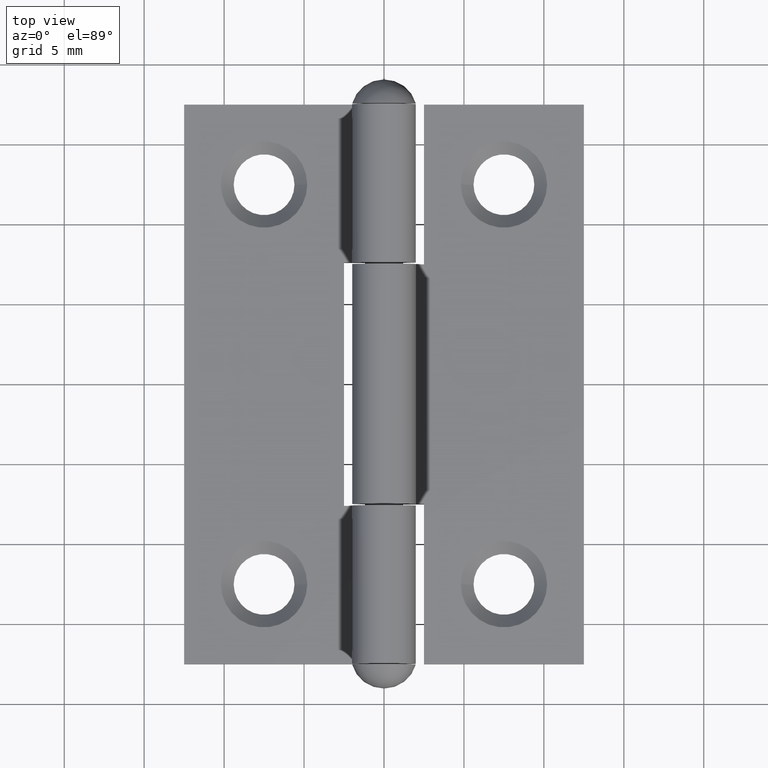
[diagram: clean part render]
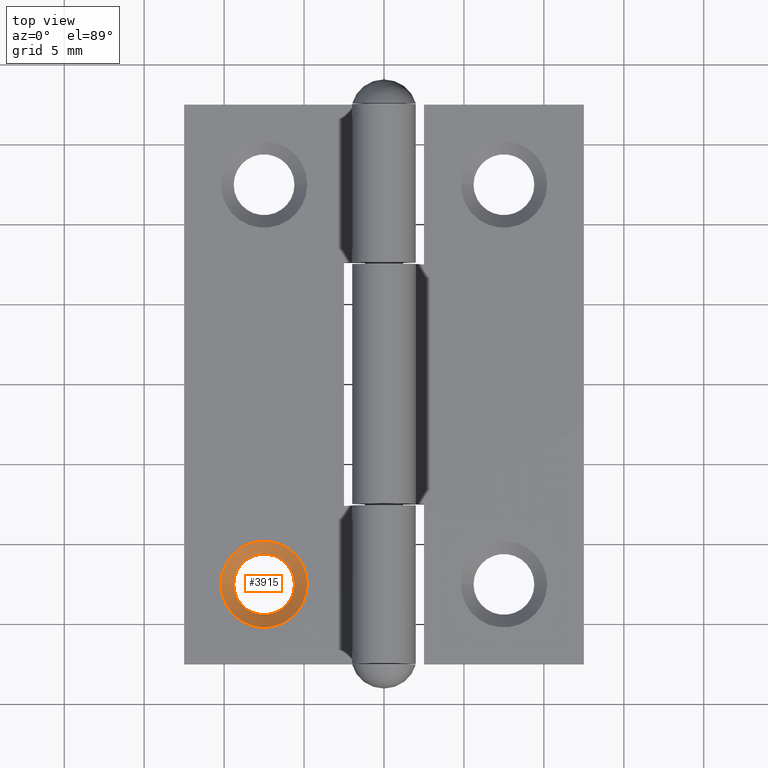
[diagram: same view with one face highlighted and labeled with its STEP entity id]
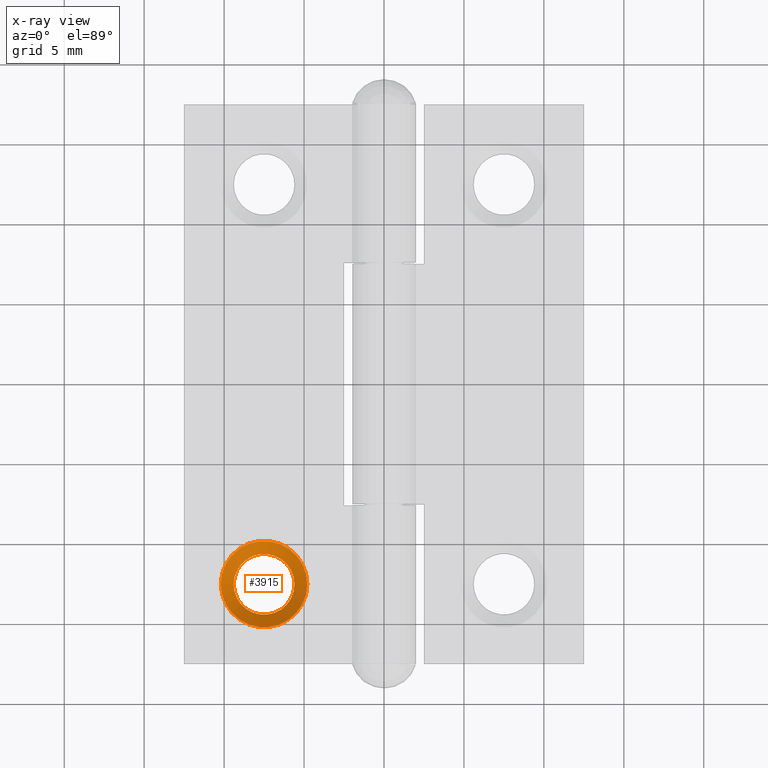
[diagram: x-ray of the same camera — body ghosted, the highlighted face saturated]
A machine part, top view. The second image highlights one B-rep face of the part: STEP entity #3915.
The next image is the same camera in x-ray: the body ghosted, the highlighted face saturated — about 0% of this face is hidden behind the body in this view.
In plain terms, the highlighted conical surface has half-angle 45 deg.
Its self-contained STEP definition (entity closure, byte-faithful):
#337 = ORIENTED_EDGE ( 'NONE', *, *, #9811, .F. ) ;
#1413 = EDGE_CURVE ( 'NONE', #8507, #8507, #4557, .T. ) ;
#1425 = ORIENTED_EDGE ( 'NONE', *, *, #1413, .F. ) ;
#1555 = DIRECTION ( 'NONE',  ( 1.000000000000000000, 0.000000000000000000, 0.000000000000000000 ) ) ;
#1676 = FACE_OUTER_BOUND ( 'NONE', #6327, .T. ) ;
#1944 = AXIS2_PLACEMENT_3D ( 'NONE', #3229, #8755, #1555 ) ;
#2426 = FACE_BOUND ( 'NONE', #3069, .T. ) ;
#2588 = AXIS2_PLACEMENT_3D ( 'NONE', #2929, #6109, #2957 ) ;
#2929 = CARTESIAN_POINT ( 'NONE',  ( -9.500000000000001776, -12.50000000000000178, 0.000000000000000000 ) ) ;
#2947 = CARTESIAN_POINT ( 'NONE',  ( -12.20000000000002416, -12.50000000000000178, 0.8000000000000013767 ) ) ;
#2957 = DIRECTION ( 'NONE',  ( 1.000000000000000000, 0.000000000000000000, 0.000000000000000000 ) ) ;
#3036 = AXIS2_PLACEMENT_3D ( 'NONE', #3411, #4300, #4985 ) ;
#3069 = EDGE_LOOP ( 'NONE', ( #1425 ) ) ;
#3229 = CARTESIAN_POINT ( 'NONE',  ( -9.500000000000001776, -12.50000000000000178, -1.704365815147212970E-14 ) ) ;
#3411 = CARTESIAN_POINT ( 'NONE',  ( -9.500000000000001776, -12.50000000000000178, 0.8000000000000010436 ) ) ;
#3580 = CIRCLE ( 'NONE', #3036, 2.700000000000021938 ) ;
#3915 = ADVANCED_FACE ( 'NONE', ( #1676, #2426 ), #5759, .F. ) ;
#4300 = DIRECTION ( 'NONE',  ( -1.127570259384924611E-16, 0.000000000000000000, -1.000000000000000000 ) ) ;
#4557 = CIRCLE ( 'NONE', #2588, 1.900000000000000577 ) ;
#4985 = DIRECTION ( 'NONE',  ( -1.000000000000000000, 0.000000000000000000, 1.204669080539439483E-16 ) ) ;
#5759 = CONICAL_SURFACE ( 'NONE', #1944, 1.900000000000000577, 0.7853981633974504994 ) ;
#6109 = DIRECTION ( 'NONE',  ( 0.000000000000000000, 0.000000000000000000, 1.000000000000000000 ) ) ;
#6327 = EDGE_LOOP ( 'NONE', ( #337 ) ) ;
#8266 = VERTEX_POINT ( 'NONE', #2947 ) ;
#8507 = VERTEX_POINT ( 'NONE', #9971 ) ;
#8755 = DIRECTION ( 'NONE',  ( 0.000000000000000000, 0.000000000000000000, 1.000000000000000000 ) ) ;
#9811 = EDGE_CURVE ( 'NONE', #8266, #8266, #3580, .T. ) ;
#9971 = CARTESIAN_POINT ( 'NONE',  ( -7.600000000000000533, -12.50000000000000178, 0.000000000000000000 ) ) ;